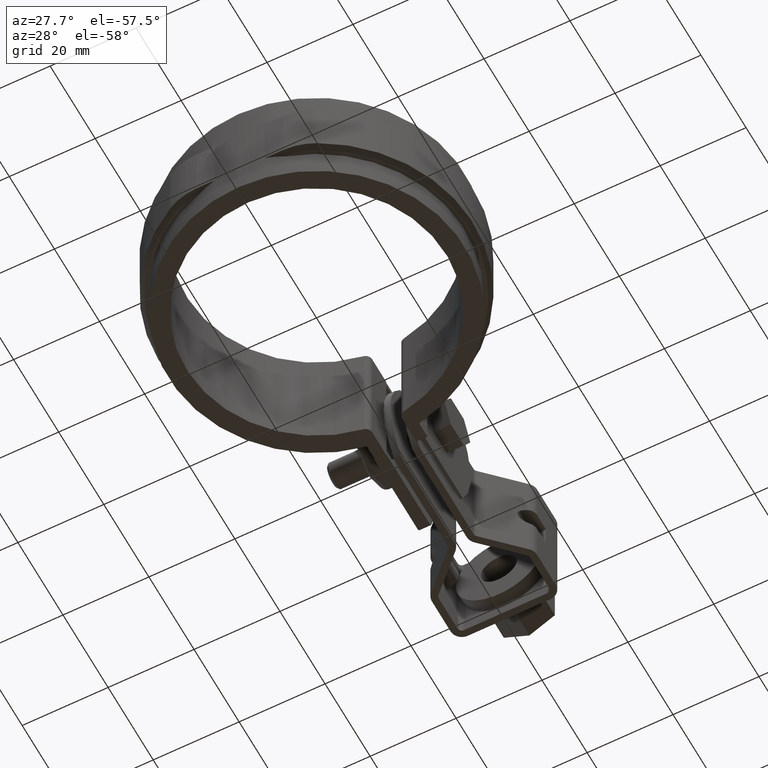
[diagram: clean part render]
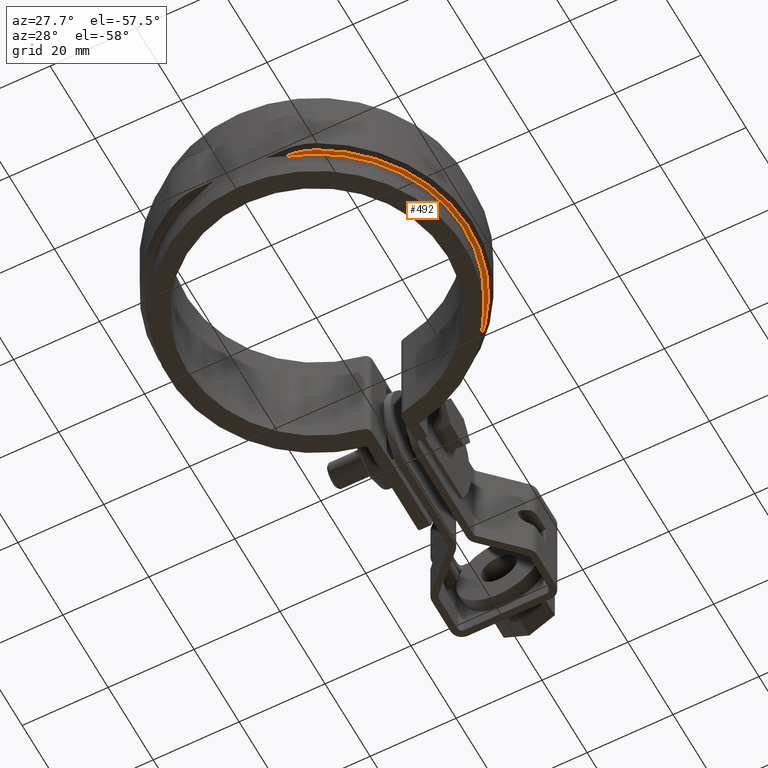
[diagram: same view with one face highlighted and labeled with its STEP entity id]
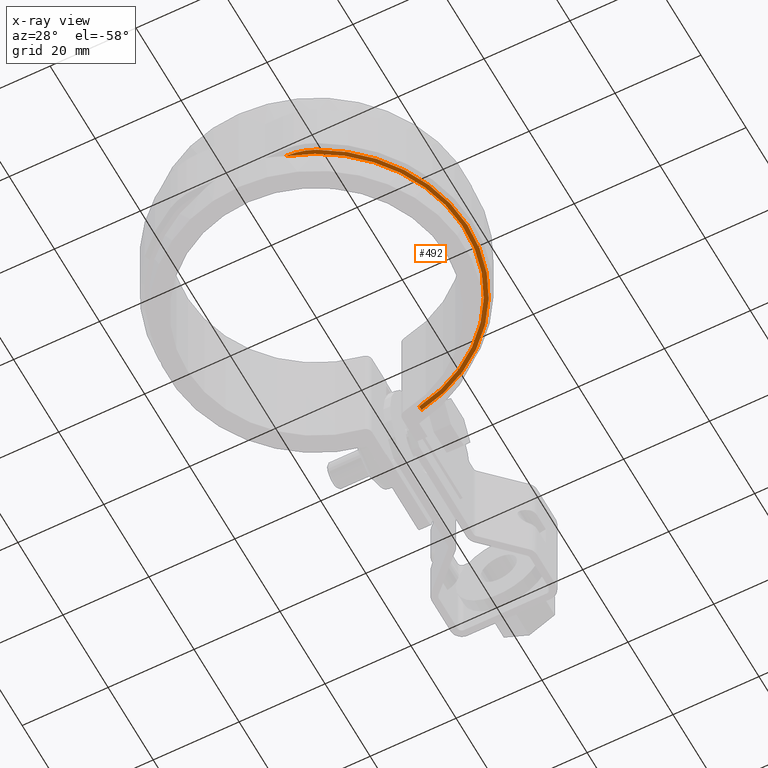
[diagram: x-ray of the same camera — body ghosted, the highlighted face saturated]
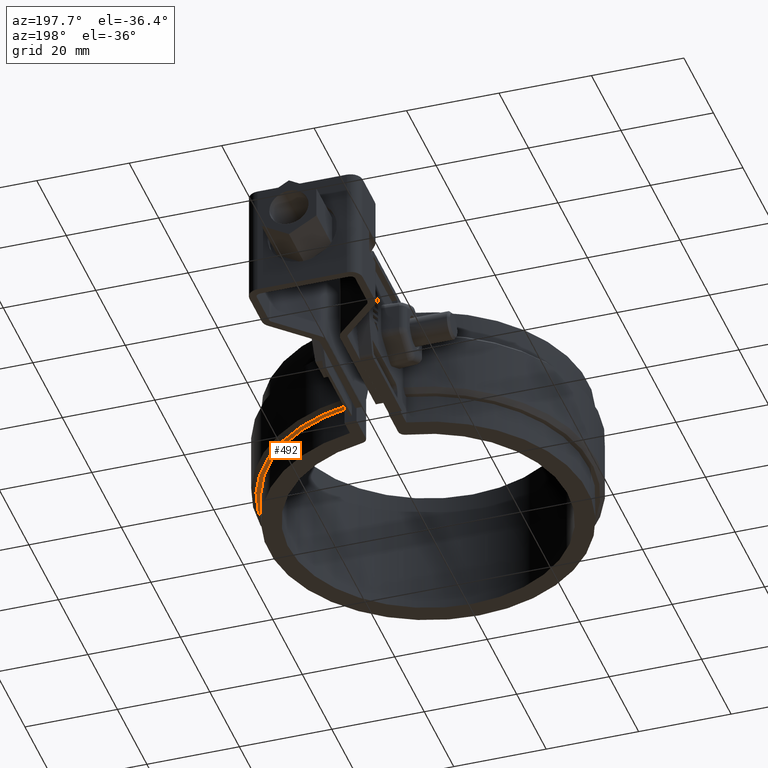
[diagram: same view with one face highlighted and labeled with its STEP entity id]
A machine part, auxiliary view. The second image highlights one B-rep face of the part: STEP entity #492.
The next image is the same camera in x-ray: the body ghosted, the highlighted face saturated — about 0% of this face is hidden behind the body in this view.
A second angle (auxiliary view) of the same face is appended — the face is thin or edge-on in the first view.
In plain terms, the highlighted planar face has unit normal (0, 0, 1).
Its self-contained STEP definition (entity closure, byte-faithful):
#492 = ADVANCED_FACE( '', ( #977 ), #978, .F. );
#977 = FACE_OUTER_BOUND( '', #2232, .T. );
#978 = PLANE( '', #2233 );
#2232 = EDGE_LOOP( '', ( #5044, #5045, #5046, #5047, #5048 ) );
#2233 = AXIS2_PLACEMENT_3D( '', #5049, #5050, #5051 );
#5044 = ORIENTED_EDGE( '', *, *, #7177, .T. );
#5045 = ORIENTED_EDGE( '', *, *, #7112, .T. );
#5046 = ORIENTED_EDGE( '', *, *, #7123, .T. );
#5047 = ORIENTED_EDGE( '', *, *, #7148, .T. );
#5048 = ORIENTED_EDGE( '', *, *, #7143, .T. );
#5049 = CARTESIAN_POINT( '', ( -8.67361737988404E-016, -6.93889390390723E-015, -20.0000000000000 ) );
#5050 = DIRECTION( '', ( 0.000000000000000, 0.000000000000000, 1.00000000000000 ) );
#5051 = DIRECTION( '', ( 1.00000000000000, 0.000000000000000, 0.000000000000000 ) );
#7112 = EDGE_CURVE( '', #8252, #8257, #8259, .T. );
#7123 = EDGE_CURVE( '', #8257, #8278, #8279, .T. );
#7143 = EDGE_CURVE( '', #8308, #8312, #8314, .F. );
#7148 = EDGE_CURVE( '', #8278, #8308, #8321, .T. );
#7177 = EDGE_CURVE( '', #8312, #8252, #8356, .F. );
#8252 = VERTEX_POINT( '', #11824 );
#8257 = VERTEX_POINT( '', #11831 );
#8259 = LINE( '', #11833, #11834 );
#8278 = VERTEX_POINT( '', #11862 );
#8279 = CIRCLE( '', #11863, 34.4950000000000 );
#8308 = VERTEX_POINT( '', #11900 );
#8312 = VERTEX_POINT( '', #11907 );
#8314 = CIRCLE( '', #11910, 35.4950000000000 );
#8321 = LINE( '', #11923, #11924 );
#8356 = CIRCLE( '', #11984, 14.0000000000000 );
#11824 = CARTESIAN_POINT( '', ( 10.0516180289543, -33.0000000000000, -20.0000000000000 ) );
#11831 = CARTESIAN_POINT( '', ( 10.0451493269140, -33.0000000000000, -20.0000000000000 ) );
#11833 = CARTESIAN_POINT( '', ( -1.78329573330416E-015, -33.0000000000000, -20.0000000000000 ) );
#11834 = VECTOR( '', #13753, 1000.00000000000 );
#11862 = CARTESIAN_POINT( '', ( 6.10000000000003, 33.9513626383390, -20.0000000000000 ) );
#11863 = AXIS2_PLACEMENT_3D( '', #13771, #13772, #13773 );
#11900 = CARTESIAN_POINT( '', ( 6.10000000000003, 34.9669132895656, -20.0000000000000 ) );
#11907 = CARTESIAN_POINT( '', ( 16.5983801785408, -31.3749709234706, -20.0000000000000 ) );
#11910 = AXIS2_PLACEMENT_3D( '', #13810, #13811, #13812 );
#11923 = CARTESIAN_POINT( '', ( 6.10000000000003, -7.30925736602828E-015, -20.0000000000000 ) );
#11924 = VECTOR( '', #13816, 1000.00000000000 );
#11984 = AXIS2_PLACEMENT_3D( '', #13860, #13861, #13862 );
#13753 = DIRECTION( '', ( -1.00000000000000, 2.77555756156289E-017, 0.000000000000000 ) );
#13771 = CARTESIAN_POINT( '', ( 0.000000000000000, 0.000000000000000, -20.0000000000000 ) );
#13772 = DIRECTION( '', ( 0.000000000000000, 0.000000000000000, 1.00000000000000 ) );
#13773 = DIRECTION( '', ( 1.00000000000000, 0.000000000000000, 0.000000000000000 ) );
#13810 = CARTESIAN_POINT( '', ( -8.67361737988404E-016, -6.93889390390723E-015, -20.0000000000000 ) );
#13811 = DIRECTION( '', ( 0.000000000000000, 0.000000000000000, 1.00000000000000 ) );
#13812 = DIRECTION( '', ( 1.00000000000000, 0.000000000000000, 0.000000000000000 ) );
#13816 = DIRECTION( '', ( 6.07153216591882E-017, 1.00000000000000, 0.000000000000000 ) );
#13860 = CARTESIAN_POINT( '', ( 10.0516180289543, -19.0000000000000, -20.0000000000000 ) );
#13861 = DIRECTION( '', ( 0.000000000000000, 0.000000000000000, 1.00000000000000 ) );
#13862 = DIRECTION( '', ( 1.00000000000000, 0.000000000000000, 0.000000000000000 ) );